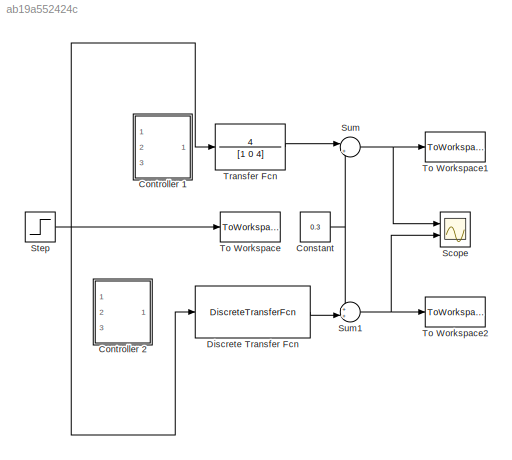
MODEL slx_ab19a552424c
KIND model
CONFIG AbsTol = auto
CONFIG EnableMultiTasking = off
CONFIG FixedStep = auto
CONFIG MaxStep = auto
CONFIG MinStep = auto
CONFIG RelTol = 1e-3
CONFIG SampleTimeConstraint = Unconstrained
CONFIG Solver = VariableStepAuto
CONFIG SolverName = VariableStepAuto
CONFIG StartTime = 0.0
CONFIG StopTime = 10.0
BLOCK [Constant] Constant
  Value = 0.3
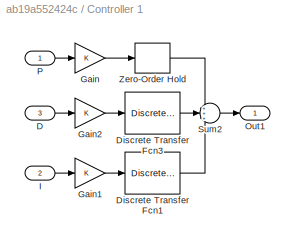
BLOCK [SubSystem] Controller 1
  Ports = [3, 1]
  RequestExecContextInheritance = off
  Variant = off
BLOCK [Inport] Controller 1/D
  IconDisplay = Port number
  Port = 3
BLOCK [DiscreteTransferFcn] Controller 1/Discrete Transfer Fcn1
  Denominator = [1 -1]
  InputPortMap = u0
  Numerator = [0.1 0]
  Ports = [1, 1]
  SampleTime = 0.1
BLOCK [DiscreteTransferFcn] Controller 1/Discrete Transfer Fcn3
  Denominator = [0.1 0]
  InputPortMap = u0
  Numerator = [1 -1]
  Ports = [1, 1]
  SampleTime = 0.1
BLOCK [Gain] Controller 1/Gain
  OutDataTypeStr = Inherit: Inherit via internal rule
  ParamDataTypeStr = Inherit: Inherit via internal rule
  SaturateOnIntegerOverflow = off
BLOCK [Gain] Controller 1/Gain1
  OutDataTypeStr = Inherit: Inherit via internal rule
  ParamDataTypeStr = Inherit: Inherit via internal rule
  SaturateOnIntegerOverflow = off
BLOCK [Gain] Controller 1/Gain2
  OutDataTypeStr = Inherit: Inherit via internal rule
  ParamDataTypeStr = Inherit: Inherit via internal rule
  SaturateOnIntegerOverflow = off
BLOCK [Inport] Controller 1/I 
  IconDisplay = Port number
  Port = 2
BLOCK [Outport] Controller 1/Out1
  IconDisplay = Port number
BLOCK [Inport] Controller 1/P
  IconDisplay = Port number
BLOCK [Sum] Controller 1/Sum2
  IconShape = round
  InputSameDT = off
  Inputs = +++
  OutDataTypeStr = Inherit: Inherit via internal rule
  Ports = [3, 1]
  SaturateOnIntegerOverflow = off
BLOCK [ZeroOrderHold] Controller 1/Zero-Order Hold
  SampleTime = -1
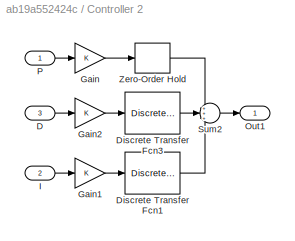
BLOCK [SubSystem] Controller 2
  Ports = [3, 1]
  RequestExecContextInheritance = off
  Variant = off
BLOCK [Inport] Controller 2/D
  IconDisplay = Port number
  Port = 3
BLOCK [DiscreteTransferFcn] Controller 2/Discrete Transfer Fcn1
  Denominator = [1 -1]
  InputPortMap = u0
  Numerator = [0.1 0]
  Ports = [1, 1]
  SampleTime = 0.1
BLOCK [DiscreteTransferFcn] Controller 2/Discrete Transfer Fcn3
  Denominator = [0.1 0]
  InputPortMap = u0
  Numerator = [1 -1]
  Ports = [1, 1]
  SampleTime = 0.1
BLOCK [Gain] Controller 2/Gain
  OutDataTypeStr = Inherit: Inherit via internal rule
  ParamDataTypeStr = Inherit: Inherit via internal rule
  SaturateOnIntegerOverflow = off
BLOCK [Gain] Controller 2/Gain1
  OutDataTypeStr = Inherit: Inherit via internal rule
  ParamDataTypeStr = Inherit: Inherit via internal rule
  SaturateOnIntegerOverflow = off
BLOCK [Gain] Controller 2/Gain2
  OutDataTypeStr = Inherit: Inherit via internal rule
  ParamDataTypeStr = Inherit: Inherit via internal rule
  SaturateOnIntegerOverflow = off
BLOCK [Inport] Controller 2/I 
  IconDisplay = Port number
  Port = 2
BLOCK [Outport] Controller 2/Out1
  IconDisplay = Port number
BLOCK [Inport] Controller 2/P
  IconDisplay = Port number
BLOCK [Sum] Controller 2/Sum2
  IconShape = round
  InputSameDT = off
  Inputs = +++
  OutDataTypeStr = Inherit: Inherit via internal rule
  Ports = [3, 1]
  SaturateOnIntegerOverflow = off
BLOCK [ZeroOrderHold] Controller 2/Zero-Order Hold
  SampleTime = -1
BLOCK [DiscreteTransferFcn] Discrete Transfer Fcn
  Denominator = [1 -1.96 1]
  InputPortMap = u0
  Numerator = [0.02 0.02]
  Ports = [1, 1]
  SampleTime = 0.1
BLOCK [Scope] Scope
  NumInputPorts = 2
  Ports = [2]
  ScopeSpecificationString = Simulink.scopes.TimeScopeBlockCfg('CurrentConfiguration', extmgr.ConfigurationSet(extmgr.Configuration('Core','General UI',true,'FigureColor',[1 1 1]),extmgr.Configuration('Core','Source UI',true),extmgr.Configuration('Sources','WiredSimulink',true),extmgr.Configuration('Visuals','Time Domain',true,'SerializedDisplays',{struct('MinYLimReal','-1.69996','MaxYLimReal','18.29963','YLabelReal','','MinY...<+1615ch>
BLOCK [Step] Step
  After = 8
  SampleTime = 0
BLOCK [Sum] Sum
  IconShape = round
  InputSameDT = off
  Inputs = |++
  OutDataTypeStr = Inherit: Inherit via internal rule
  Ports = [2, 1]
  SaturateOnIntegerOverflow = off
BLOCK [Sum] Sum1
  IconShape = round
  InputSameDT = off
  Inputs = ++|
  OutDataTypeStr = Inherit: Inherit via internal rule
  Ports = [2, 1]
  SaturateOnIntegerOverflow = off
BLOCK [ToWorkspace] To Workspace
  FixptAsFi = on
  MaxDataPoints = inf
  Ports = [1]
  SampleTime = -1
  Save2DSignal = 3-D array (concatenate along third dimension)
  SaveFormat = Timeseries
  VariableName = step
BLOCK [ToWorkspace] To Workspace1
  FixptAsFi = on
  MaxDataPoints = inf
  Ports = [1]
  SampleTime = -1
  Save2DSignal = 3-D array (concatenate along third dimension)
  SaveFormat = Timeseries
  VariableName = alpha_c
BLOCK [ToWorkspace] To Workspace2
  FixptAsFi = on
  MaxDataPoints = inf
  Ports = [1]
  SampleTime = -1
  Save2DSignal = 3-D array (concatenate along third dimension)
  SaveFormat = Timeseries
  VariableName = alpha_d
BLOCK [TransferFcn] Transfer Fcn
  Denominator = [1 0 4]
  Numerator = 4
NET Constant:1 -> Sum1:1, Sum:2
LINE Controller 1/D:1 -> Controller 1/Gain2:1
LINE Controller 1/Discrete Transfer Fcn1:1 -> Controller 1/Sum2:3
LINE Controller 1/Discrete Transfer Fcn3:1 -> Controller 1/Sum2:2
LINE Controller 1/Gain1:1 -> Controller 1/Discrete Transfer Fcn1:1
LINE Controller 1/Gain2:1 -> Controller 1/Discrete Transfer Fcn3:1
LINE Controller 1/Gain:1 -> Controller 1/Zero-Order Hold:1
LINE Controller 1/I :1 -> Controller 1/Gain1:1
LINE Controller 1/P:1 -> Controller 1/Gain:1
LINE Controller 1/Sum2:1 -> Controller 1/Out1:1
LINE Controller 1/Zero-Order Hold:1 -> Controller 1/Sum2:1
LINE Controller 2/D:1 -> Controller 2/Gain2:1
LINE Controller 2/Discrete Transfer Fcn1:1 -> Controller 2/Sum2:3
LINE Controller 2/Discrete Transfer Fcn3:1 -> Controller 2/Sum2:2
LINE Controller 2/Gain1:1 -> Controller 2/Discrete Transfer Fcn1:1
LINE Controller 2/Gain2:1 -> Controller 2/Discrete Transfer Fcn3:1
LINE Controller 2/Gain:1 -> Controller 2/Zero-Order Hold:1
LINE Controller 2/I :1 -> Controller 2/Gain1:1
LINE Controller 2/P:1 -> Controller 2/Gain:1
LINE Controller 2/Sum2:1 -> Controller 2/Out1:1
LINE Controller 2/Zero-Order Hold:1 -> Controller 2/Sum2:1
LINE Discrete Transfer Fcn:1 -> Sum1:2
NET Step:1 -> Discrete Transfer Fcn:1, To Workspace:1, Transfer Fcn:1
NET Sum1:1 -> Scope:2, To Workspace2:1
NET Sum:1 -> Scope:1, To Workspace1:1
LINE Transfer Fcn:1 -> Sum:1
note: NET lines group one-source signal fan-out (src -> all destinations, sorted); 1:1 wires keep LINE
